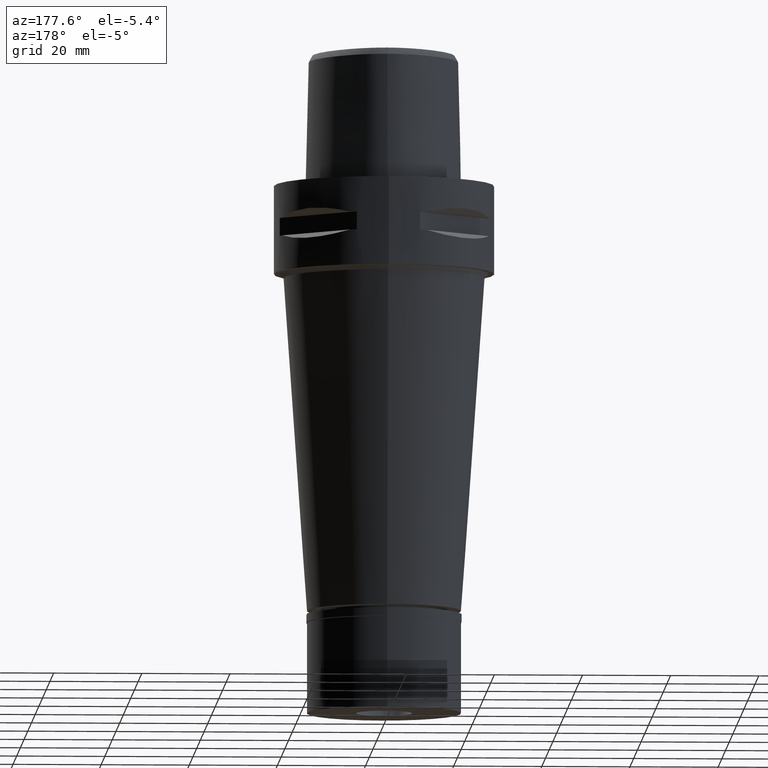
[diagram: clean part render]
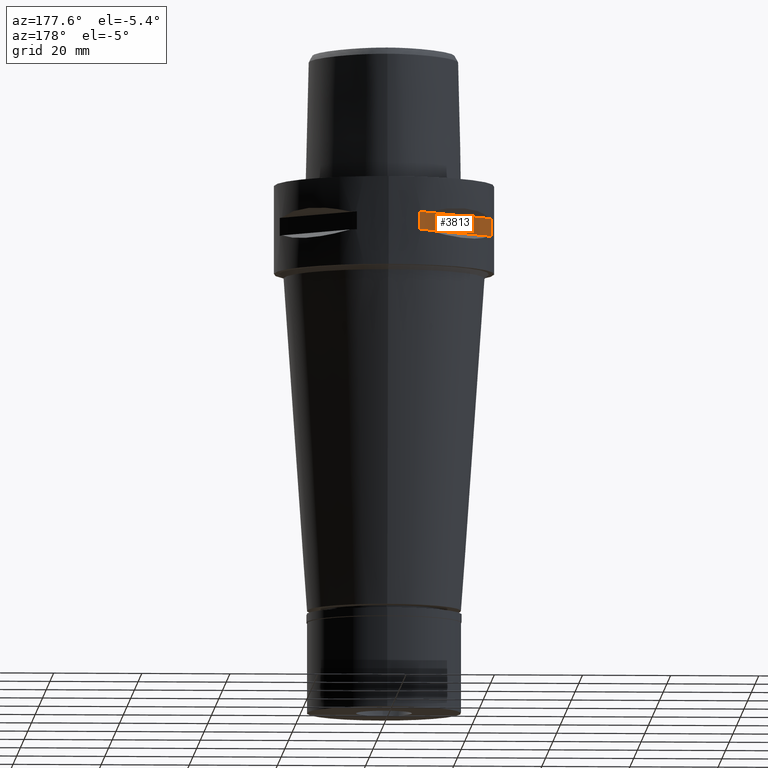
[diagram: same view with one face highlighted and labeled with its STEP entity id]
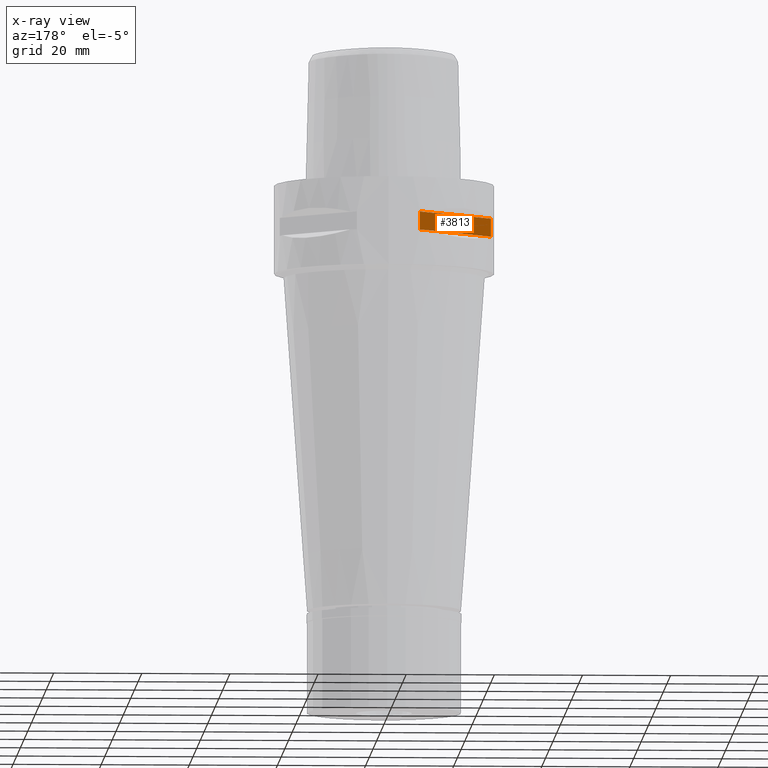
[diagram: x-ray of the same camera — body ghosted, the highlighted face saturated]
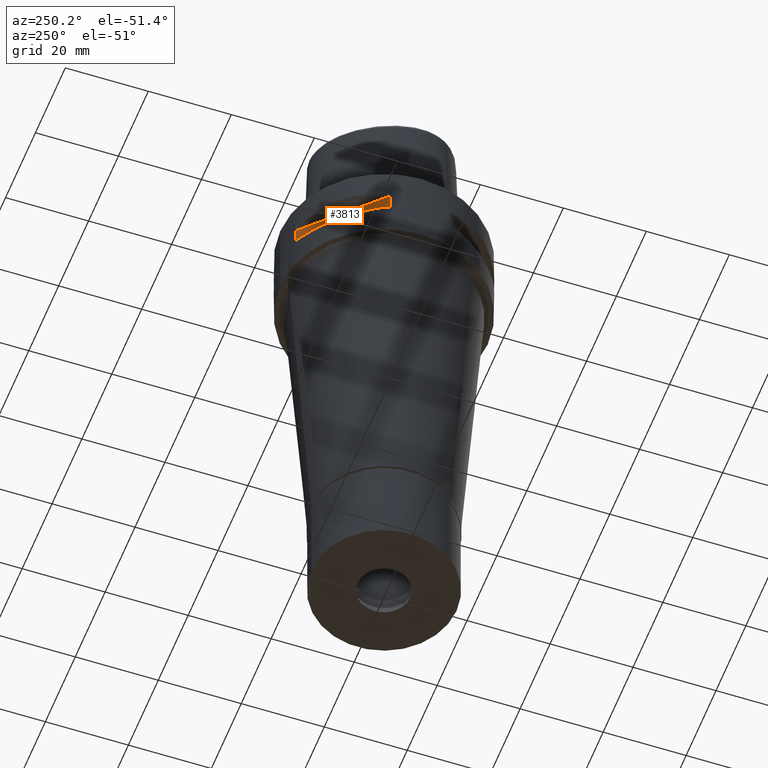
[diagram: same view with one face highlighted and labeled with its STEP entity id]
A machine part, auxiliary view. The second image highlights one B-rep face of the part: STEP entity #3813.
The next image is the same camera in x-ray: the body ghosted, the highlighted face saturated — about 0% of this face is hidden behind the body in this view.
A second angle (auxiliary view) of the same face is appended — the face is thin or edge-on in the first view.
In plain terms, the highlighted planar face has unit normal (0.7071, -0.7071, 0).
Its self-contained STEP definition (entity closure, byte-faithful):
#75 = DIRECTION ( 'NONE',  ( -0.7071067811865474617, -0.7071067811865474617, 0.0000000000000000000 ) ) ;
#159 = CARTESIAN_POINT ( 'NONE',  ( -26.16295090389999700, 4.949747468305999654, -7.950000000000000178 ) ) ;
#206 = DIRECTION ( 'NONE',  ( 0.0000000000000000000, 0.0000000000000000000, -1.000000000000000000 ) ) ;
#230 = VECTOR ( 'NONE', #3932, 1000.000000000000000 ) ;
#305 = VERTEX_POINT ( 'NONE', #1960 ) ;
#628 = AXIS2_PLACEMENT_3D ( 'NONE', #159, #3572, #206 ) ;
#790 = VECTOR ( 'NONE', #75, 1000.000000000000114 ) ;
#988 = VERTEX_POINT ( 'NONE', #3478 ) ;
#1064 = CARTESIAN_POINT ( 'NONE',  ( -7.159921374235000080, 23.95277699797999915, -7.950000000000000178 ) ) ;
#1364 = DIRECTION ( 'NONE',  ( 0.0000000000000000000, 0.0000000000000000000, -1.000000000000000000 ) ) ;
#1960 = CARTESIAN_POINT ( 'NONE',  ( -23.95277699797999915, 7.159921374230999724, -7.950000000000000178 ) ) ;
#1982 = CARTESIAN_POINT ( 'NONE',  ( -7.159921374230999724, 23.95277699797999915, -12.05000000000000071 ) ) ;
#2039 = ORIENTED_EDGE ( 'NONE', *, *, #3169, .T. ) ;
#2492 = FACE_OUTER_BOUND ( 'NONE', #2504, .T. ) ;
#2504 = EDGE_LOOP ( 'NONE', ( #3880, #2790, #3145, #2039 ) ) ;
#2560 = EDGE_CURVE ( 'NONE', #3966, #305, #3965, .T. ) ;
#2608 = CARTESIAN_POINT ( 'NONE',  ( -23.95277699797999915, 7.159921374235000080, -12.05000000000000071 ) ) ;
#2790 = ORIENTED_EDGE ( 'NONE', *, *, #3781, .T. ) ;
#2839 = CARTESIAN_POINT ( 'NONE',  ( -7.159921374230999724, 23.95277699797999915, -7.950000000000000178 ) ) ;
#3145 = ORIENTED_EDGE ( 'NONE', *, *, #3263, .T. ) ;
#3161 = VECTOR ( 'NONE', #3295, 1000.000000000000114 ) ;
#3169 = EDGE_CURVE ( 'NONE', #4602, #305, #3954, .T. ) ;
#3263 = EDGE_CURVE ( 'NONE', #988, #4602, #4236, .T. ) ;
#3274 = LINE ( 'NONE', #2839, #3671 ) ;
#3295 = DIRECTION ( 'NONE',  ( -0.7071067811865474617, -0.7071067811865474617, 0.0000000000000000000 ) ) ;
#3478 = CARTESIAN_POINT ( 'NONE',  ( -7.159921374230999724, 23.95277699797999915, -12.05000000000000071 ) ) ;
#3572 = DIRECTION ( 'NONE',  ( 0.7071067811865475727, -0.7071067811865475727, 0.0000000000000000000 ) ) ;
#3671 = VECTOR ( 'NONE', #1364, 1000.000000000000000 ) ;
#3781 = EDGE_CURVE ( 'NONE', #3966, #988, #3274, .T. ) ;
#3813 = ADVANCED_FACE ( 'NONE', ( #2492 ), #4426, .F. ) ;
#3880 = ORIENTED_EDGE ( 'NONE', *, *, #2560, .F. ) ;
#3932 = DIRECTION ( 'NONE',  ( 0.0000000000000000000, 0.0000000000000000000, 1.000000000000000000 ) ) ;
#3954 = LINE ( 'NONE', #4334, #230 ) ;
#3965 = LINE ( 'NONE', #4449, #3161 ) ;
#3966 = VERTEX_POINT ( 'NONE', #1064 ) ;
#4236 = LINE ( 'NONE', #1982, #790 ) ;
#4334 = CARTESIAN_POINT ( 'NONE',  ( -23.95277699797999915, 7.159921374230999724, -12.05000000000000071 ) ) ;
#4426 = PLANE ( 'NONE',  #628 ) ;
#4449 = CARTESIAN_POINT ( 'NONE',  ( -7.159921374230999724, 23.95277699797999915, -7.950000000000000178 ) ) ;
#4602 = VERTEX_POINT ( 'NONE', #2608 ) ;